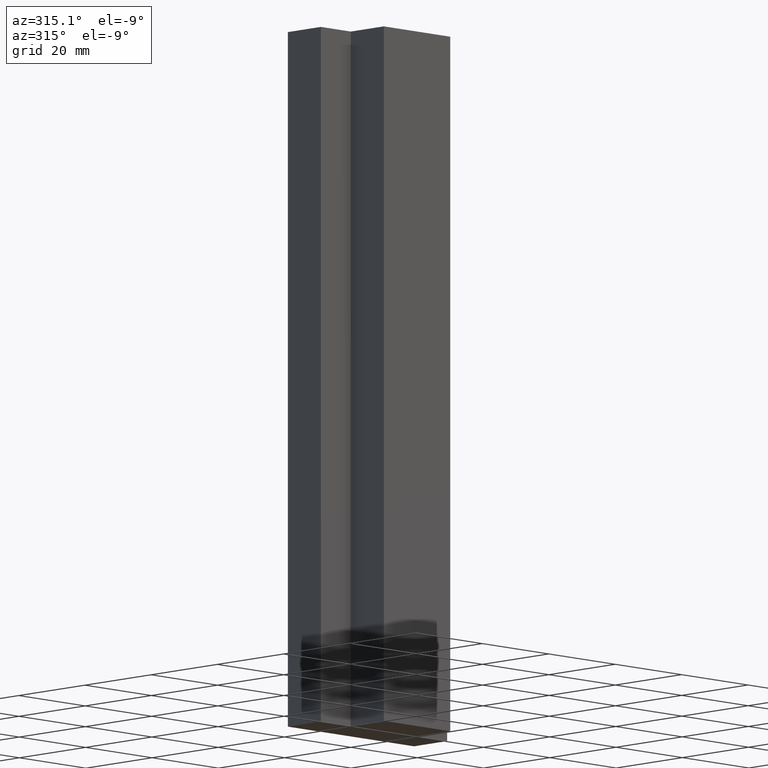
[diagram: clean part render]
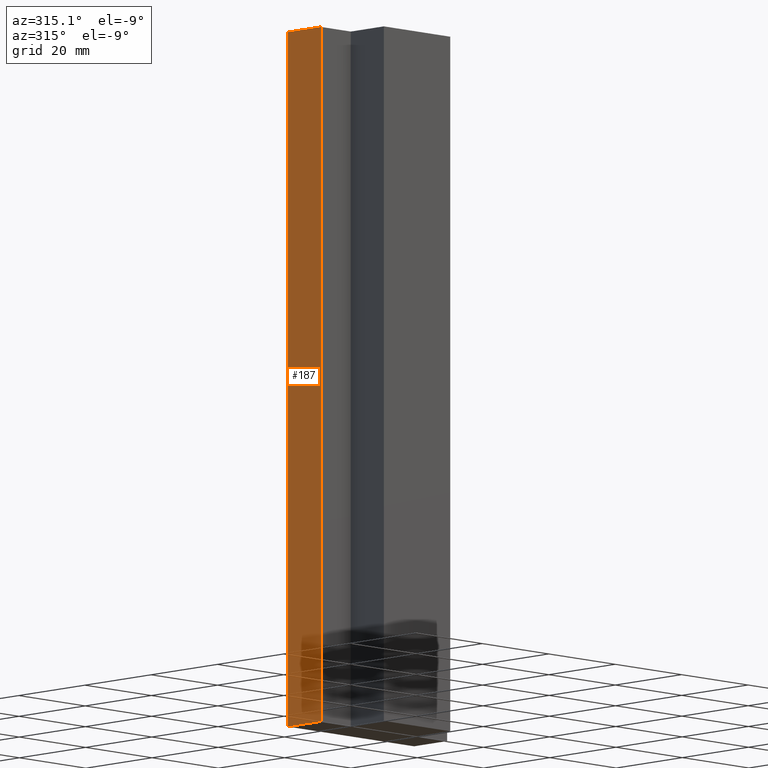
[diagram: same view with one face highlighted and labeled with its STEP entity id]
A machine part, auxiliary view. The second image highlights one B-rep face of the part: STEP entity #187.
In plain terms, the highlighted planar face has unit normal (-1, -0, 0).
Its self-contained STEP definition (entity closure, byte-faithful):
#21=FACE_OUTER_BOUND('',#31,.T.);
#31=EDGE_LOOP('',(#148,#149,#150,#151));
#42=LINE('',#287,#66);
#52=LINE('',#306,#76);
#53=LINE('',#309,#77);
#54=LINE('',#310,#78);
#66=VECTOR('',#235,10.);
#76=VECTOR('',#253,10.);
#77=VECTOR('',#256,10.);
#78=VECTOR('',#257,10.);
#90=VERTEX_POINT('',#284);
#91=VERTEX_POINT('',#286);
#96=VERTEX_POINT('',#304);
#97=VERTEX_POINT('',#308);
#106=EDGE_CURVE('',#91,#90,#42,.T.);
#116=EDGE_CURVE('',#96,#90,#52,.T.);
#117=EDGE_CURVE('',#96,#97,#53,.T.);
#118=EDGE_CURVE('',#97,#91,#54,.T.);
#148=ORIENTED_EDGE('',*,*,#117,.T.);
#149=ORIENTED_EDGE('',*,*,#118,.T.);
#150=ORIENTED_EDGE('',*,*,#106,.T.);
#151=ORIENTED_EDGE('',*,*,#116,.F.);
#177=PLANE('',#220);
#187=ADVANCED_FACE('',(#21),#177,.T.);
#220=AXIS2_PLACEMENT_3D('',#307,#254,#255);
#235=DIRECTION('',(8.88178419700125E-16,-1.,0.));
#253=DIRECTION('',(0.,0.,-1.));
#254=DIRECTION('center_axis',(-1.,-8.88178419700125E-16,0.));
#255=DIRECTION('ref_axis',(0.,0.,1.));
#256=DIRECTION('',(-8.88178419700125E-16,1.,0.));
#257=DIRECTION('',(0.,0.,-1.));
#284=CARTESIAN_POINT('',(-19.,10.,-75.));
#286=CARTESIAN_POINT('',(-19.,20.,-75.));
#287=CARTESIAN_POINT('',(-19.,10.,-75.));
#304=CARTESIAN_POINT('',(-19.,10.,75.));
#306=CARTESIAN_POINT('',(-19.,10.,0.));
#307=CARTESIAN_POINT('Origin',(-19.,10.,0.));
#308=CARTESIAN_POINT('',(-19.,20.,75.));
#309=CARTESIAN_POINT('',(-19.,10.,75.));
#310=CARTESIAN_POINT('',(-19.,20.,0.));